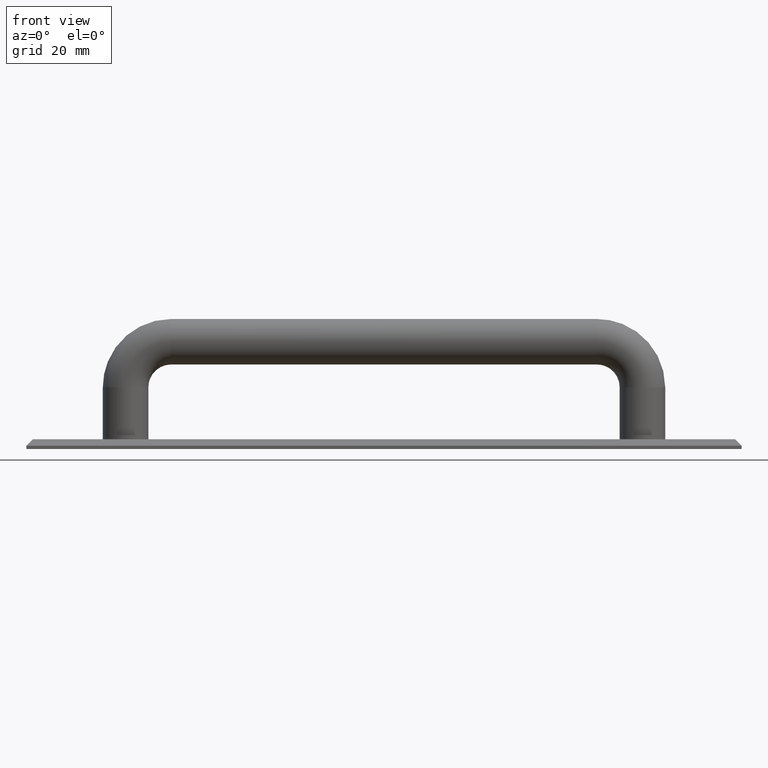
[diagram: clean part render]
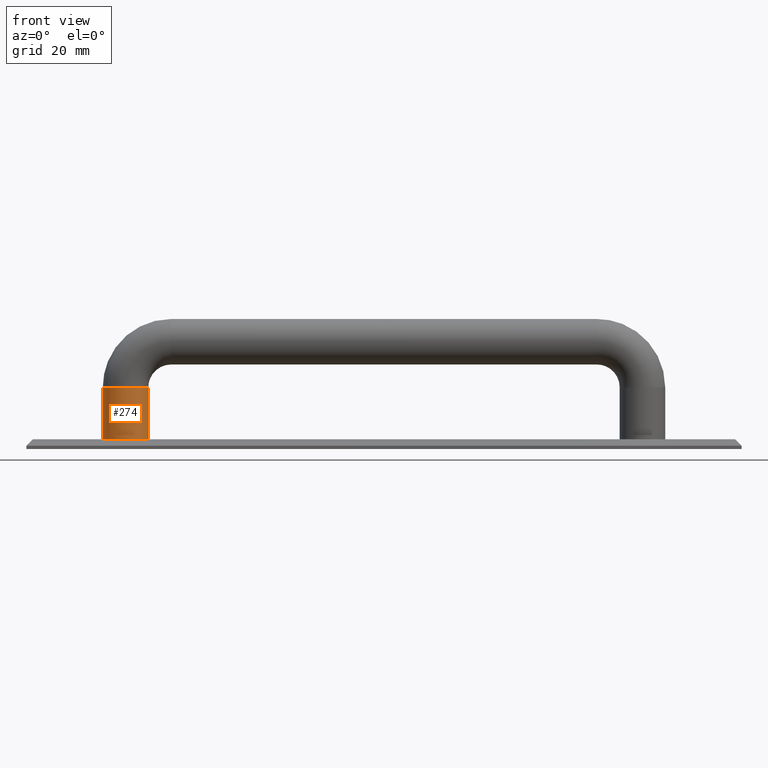
[diagram: same view with one face highlighted and labeled with its STEP entity id]
A machine part, front view. The second image highlights one B-rep face of the part: STEP entity #274.
In plain terms, the highlighted cylindrical surface (bore or boss wall) has radius 7 mm, axis along (-0, 0, -1).
Its self-contained STEP definition (entity closure, byte-faithful):
#69=FACE_BOUND('',#104,.T.);
#84=FACE_OUTER_BOUND('',#103,.T.);
#103=EDGE_LOOP('',(#205));
#104=EDGE_LOOP('',(#206));
#137=CIRCLE('',#296,7.);
#138=CIRCLE('',#297,7.);
#149=VERTEX_POINT('',#412);
#150=VERTEX_POINT('',#414);
#173=EDGE_CURVE('',#149,#149,#137,.T.);
#174=EDGE_CURVE('',#150,#150,#138,.T.);
#205=ORIENTED_EDGE('',*,*,#173,.F.);
#206=ORIENTED_EDGE('',*,*,#174,.F.);
#269=CYLINDRICAL_SURFACE('',#295,7.);
#274=ADVANCED_FACE('',(#84,#69),#269,.T.);
#295=AXIS2_PLACEMENT_3D('',#411,#328,#329);
#296=AXIS2_PLACEMENT_3D('',#413,#330,#331);
#297=AXIS2_PLACEMENT_3D('',#415,#332,#333);
#328=DIRECTION('center_axis',(-9.34924652315918E-16,0.,-1.));
#329=DIRECTION('ref_axis',(1.,0.,-9.34924652315918E-16));
#330=DIRECTION('center_axis',(6.34413156928661E-16,0.,1.));
#331=DIRECTION('ref_axis',(1.,0.,-6.34413156928661E-16));
#332=DIRECTION('center_axis',(0.,0.,-1.));
#333=DIRECTION('ref_axis',(1.,0.,-9.34924652315918E-16));
#411=CARTESIAN_POINT('Origin',(30.5,12.5,19.0000000000001));
#412=CARTESIAN_POINT('',(23.5,12.5,19.0000000000001));
#413=CARTESIAN_POINT('Origin',(30.5,12.5,19.0000000000001));
#414=CARTESIAN_POINT('',(23.5,12.5,3.00000000000008));
#415=CARTESIAN_POINT('Origin',(30.5,12.5,3.00000000000007));